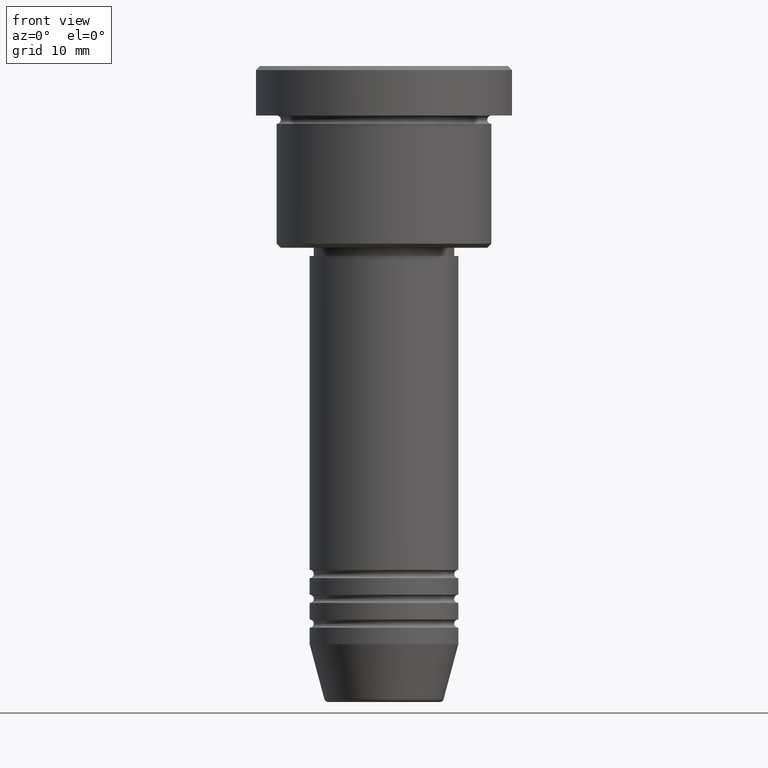
[diagram: clean part render]
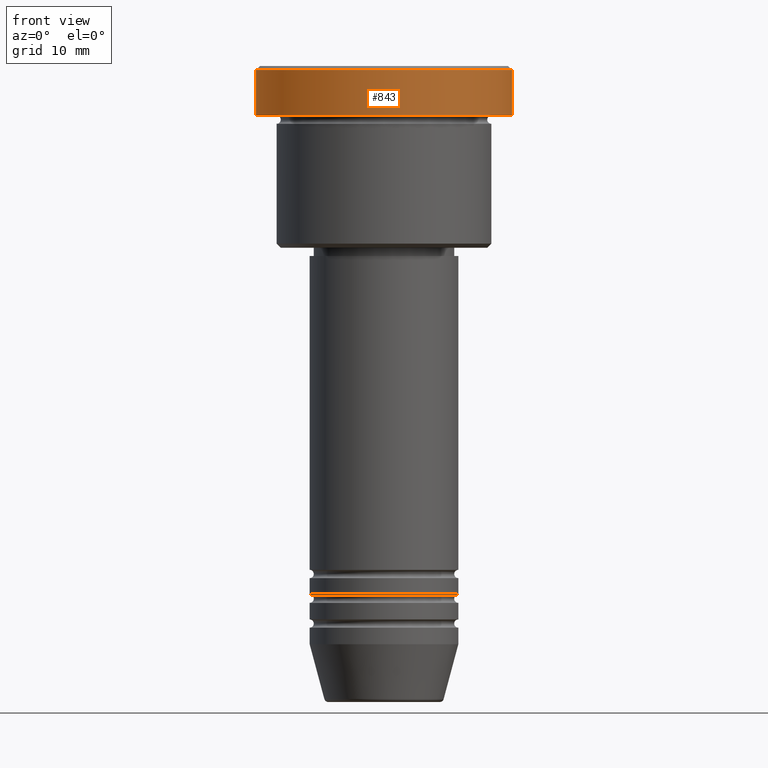
[diagram: same view with one face highlighted and labeled with its STEP entity id]
A machine part, front view. The second image highlights one B-rep face of the part: STEP entity #843.
In plain terms, the highlighted cylindrical surface (partial cylindrical patch) has radius 15.5 mm, axis along (-0, -0, 1).
Its self-contained STEP definition (entity closure, byte-faithful):
#33 = VERTEX_POINT ( 'NONE', #498 ) ;
#121 = ORIENTED_EDGE ( 'NONE', *, *, #757, .T. ) ;
#126 = ORIENTED_EDGE ( 'NONE', *, *, #1067, .T. ) ;
#127 = CIRCLE ( 'NONE', #1132, 15.50000000000000000 ) ;
#140 = DIRECTION ( 'NONE',  ( 0.000000000000000000, 0.000000000000000000, -1.000000000000000000 ) ) ;
#151 = DIRECTION ( 'NONE',  ( 1.000000000000000000, 0.000000000000000000, 0.000000000000000000 ) ) ;
#170 = CARTESIAN_POINT ( 'NONE',  ( 0.000000000000000000, 0.000000000000000000, 0.000000000000000000 ) ) ;
#174 = FACE_OUTER_BOUND ( 'NONE', #1140, .T. ) ;
#182 = VECTOR ( 'NONE', #930, 1000.000000000000000 ) ;
#251 = ORIENTED_EDGE ( 'NONE', *, *, #630, .F. ) ;
#252 = CARTESIAN_POINT ( 'NONE',  ( -15.50000000000000000, 1.898202538678397557E-15, -5.999999999999995559 ) ) ;
#365 = DIRECTION ( 'NONE',  ( -0.000000000000000000, -0.000000000000000000, 1.000000000000000000 ) ) ;
#450 = AXIS2_PLACEMENT_3D ( 'NONE', #500, #140, #151 ) ;
#482 = VERTEX_POINT ( 'NONE', #648 ) ;
#498 = CARTESIAN_POINT ( 'NONE',  ( 15.50000000000000000, 0.000000000000000000, -5.999999999999995559 ) ) ;
#500 = CARTESIAN_POINT ( 'NONE',  ( 0.000000000000000000, 0.000000000000000000, -0.4999999999999987232 ) ) ;
#543 = DIRECTION ( 'NONE',  ( 1.000000000000000000, 0.000000000000000000, 0.000000000000000000 ) ) ;
#551 = DIRECTION ( 'NONE',  ( 1.000000000000000000, 0.000000000000000000, 0.000000000000000000 ) ) ;
#565 = CARTESIAN_POINT ( 'NONE',  ( -15.50000000000000000, 1.898202538678397557E-15, 0.000000000000000000 ) ) ;
#572 = DIRECTION ( 'NONE',  ( -0.000000000000000000, -0.000000000000000000, 1.000000000000000000 ) ) ;
#630 = EDGE_CURVE ( 'NONE', #748, #482, #1133, .T. ) ;
#639 = DIRECTION ( 'NONE',  ( -0.000000000000000000, -0.000000000000000000, 1.000000000000000000 ) ) ;
#648 = CARTESIAN_POINT ( 'NONE',  ( -15.50000000000000000, 1.898202538678397557E-15, -0.4999999999999987232 ) ) ;
#657 = VECTOR ( 'NONE', #572, 1000.000000000000000 ) ;
#748 = VERTEX_POINT ( 'NONE', #252 ) ;
#753 = LINE ( 'NONE', #932, #657 ) ;
#757 = EDGE_CURVE ( 'NONE', #850, #482, #928, .T. ) ;
#843 = ADVANCED_FACE ( 'NONE', ( #174 ), #1081, .T. ) ;
#850 = VERTEX_POINT ( 'NONE', #1174 ) ;
#928 = CIRCLE ( 'NONE', #450, 15.50000000000000000 ) ;
#930 = DIRECTION ( 'NONE',  ( -0.000000000000000000, -0.000000000000000000, 1.000000000000000000 ) ) ;
#932 = CARTESIAN_POINT ( 'NONE',  ( 15.50000000000000000, 0.000000000000000000, 0.000000000000000000 ) ) ;
#944 = ORIENTED_EDGE ( 'NONE', *, *, #954, .T. ) ;
#954 = EDGE_CURVE ( 'NONE', #748, #33, #127, .T. ) ;
#1067 = EDGE_CURVE ( 'NONE', #33, #850, #753, .T. ) ;
#1081 = CYLINDRICAL_SURFACE ( 'NONE', #1098, 15.50000000000000000 ) ;
#1098 = AXIS2_PLACEMENT_3D ( 'NONE', #170, #639, #543 ) ;
#1132 = AXIS2_PLACEMENT_3D ( 'NONE', #1179, #365, #551 ) ;
#1133 = LINE ( 'NONE', #565, #182 ) ;
#1140 = EDGE_LOOP ( 'NONE', ( #251, #944, #126, #121 ) ) ;
#1174 = CARTESIAN_POINT ( 'NONE',  ( 15.50000000000000000, 0.000000000000000000, -0.4999999999999987232 ) ) ;
#1179 = CARTESIAN_POINT ( 'NONE',  ( 0.000000000000000000, 0.000000000000000000, -5.999999999999995559 ) ) ;